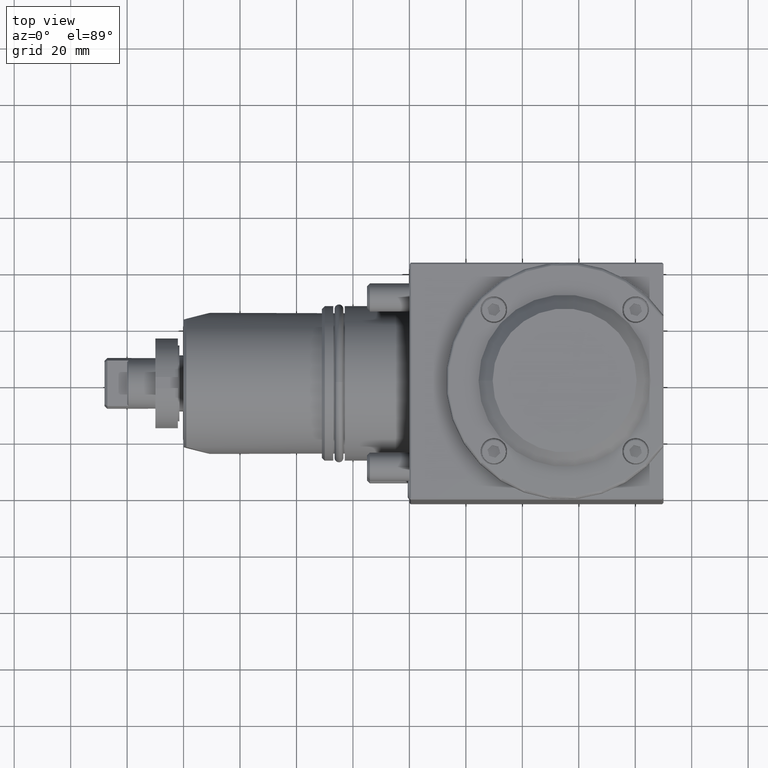
[diagram: clean part render]
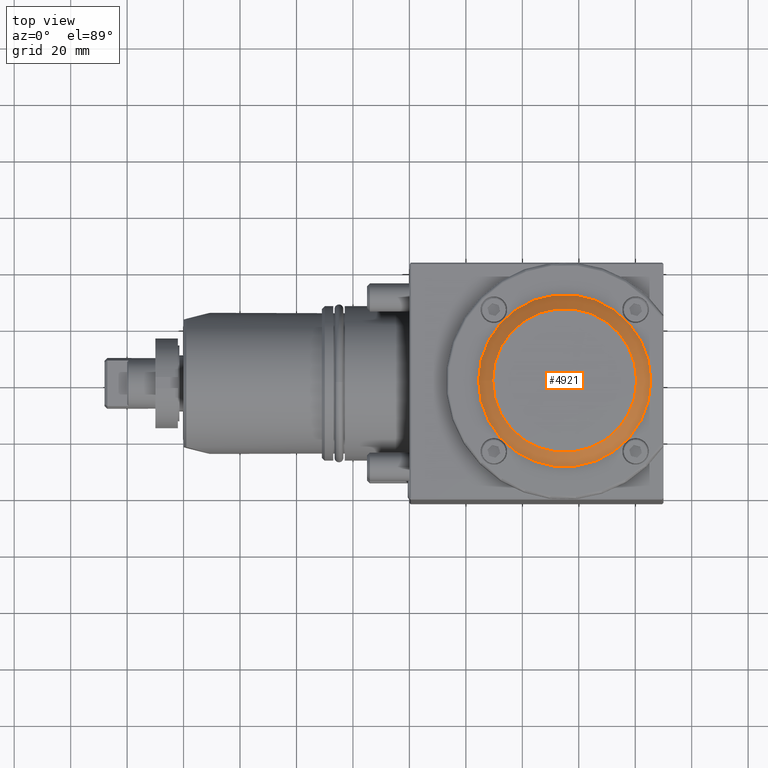
[diagram: same view with one face highlighted and labeled with its STEP entity id]
A machine part, top view. The second image highlights one B-rep face of the part: STEP entity #4921.
In plain terms, the highlighted conical surface has half-angle 45 deg.
Its self-contained STEP definition (entity closure, byte-faithful):
#50 = DIRECTION ( 'NONE',  ( -6.982962677686266711E-15, -3.158414431455586393E-15, -1.000000000000000000 ) ) ;
#424 = DIRECTION ( 'NONE',  ( 6.982962677686266711E-15, 3.158414431455586393E-15, 1.000000000000000000 ) ) ;
#500 = AXIS2_PLACEMENT_3D ( 'NONE', #1207, #6712, #10390 ) ;
#884 = CIRCLE ( 'NONE', #500, 25.50000000000000000 ) ;
#1207 = CARTESIAN_POINT ( 'NONE',  ( 55.00000000001111289, -1.952430736633471130E-11, 60.00000000000152056 ) ) ;
#2048 = CONICAL_SURFACE ( 'NONE', #10735, 25.50000000000000355, 0.7853981633974476129 ) ;
#2747 = FACE_OUTER_BOUND ( 'NONE', #7985, .T. ) ;
#3926 = ORIENTED_EDGE ( 'NONE', *, *, #4520, .T. ) ;
#4218 = DIRECTION ( 'NONE',  ( -1.000000000000000000, -1.387778780780700695E-16, 7.052646262987674809E-15 ) ) ;
#4475 = EDGE_CURVE ( 'NONE', #6430, #6430, #884, .T. ) ;
#4520 = EDGE_CURVE ( 'NONE', #6733, #6733, #5497, .T. ) ;
#4921 = ADVANCED_FACE ( 'NONE', ( #2747, #8128 ), #2048, .T. ) ;
#5497 = CIRCLE ( 'NONE', #10140, 30.50000000000000000 ) ;
#5871 = CARTESIAN_POINT ( 'NONE',  ( 24.50000000001108091, -1.954433216377335471E-11, 55.00000000000173372 ) ) ;
#6430 = VERTEX_POINT ( 'NONE', #8308 ) ;
#6712 = DIRECTION ( 'NONE',  ( 6.982962677686266711E-15, 3.158414431455586393E-15, 1.000000000000000000 ) ) ;
#6733 = VERTEX_POINT ( 'NONE', #5871 ) ;
#7759 = EDGE_LOOP ( 'NONE', ( #8581 ) ) ;
#7985 = EDGE_LOOP ( 'NONE', ( #3926 ) ) ;
#8128 = FACE_BOUND ( 'NONE', #7759, .T. ) ;
#8308 = CARTESIAN_POINT ( 'NONE',  ( 29.50000000001111644, -1.952784620222570076E-11, 60.00000000000169820 ) ) ;
#8581 = ORIENTED_EDGE ( 'NONE', *, *, #4475, .F. ) ;
#9871 = DIRECTION ( 'NONE',  ( 1.000000000000000000, 1.387778780780802014E-16, -7.074950647121094920E-15 ) ) ;
#10140 = AXIS2_PLACEMENT_3D ( 'NONE', #11596, #424, #4218 ) ;
#10390 = DIRECTION ( 'NONE',  ( -1.000000000000000000, -1.387778780780802261E-16, 7.074950647121095709E-15 ) ) ;
#10735 = AXIS2_PLACEMENT_3D ( 'NONE', #10972, #50, #9871 ) ;
#10972 = CARTESIAN_POINT ( 'NONE',  ( 55.00000000001111289, -1.952430736633471130E-11, 60.00000000000152056 ) ) ;
#11596 = CARTESIAN_POINT ( 'NONE',  ( 55.00000000001108447, -1.954009943849197453E-11, 55.00000000000152056 ) ) ;